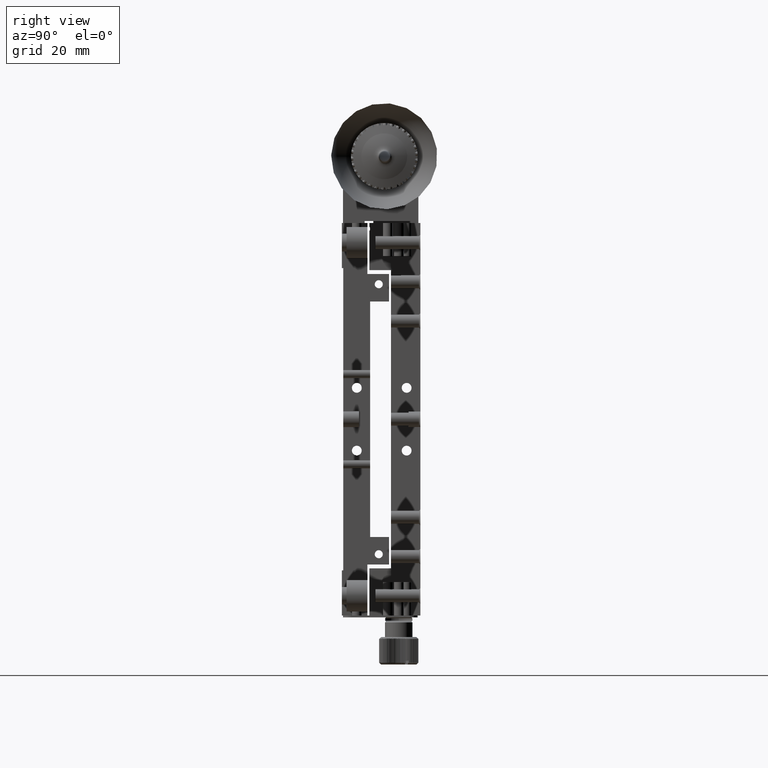
[diagram: clean part render]
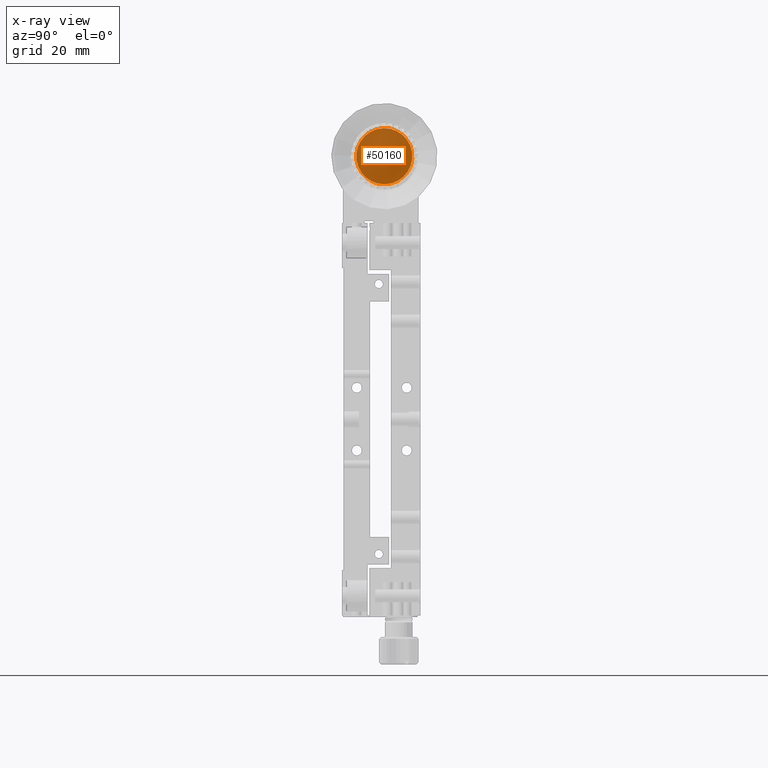
[diagram: x-ray — body ghosted, one internal face saturated and labeled with its STEP entity id]
A machine part, right view, then the same camera in x-ray: the body is ghosted and one INTERNAL B-rep face — a face not visible from any outside direction — is saturated and labeled: STEP entity #50160.
In plain terms, the highlighted planar face has unit normal (-1, -0, 0).
Its self-contained STEP definition (entity closure, byte-faithful):
#7820 = CARTESIAN_POINT ( 'NONE',  ( 41.30109935357899786, -10.59915581468196066, 64.26978987138492982 ) ) ;
#18936 = CARTESIAN_POINT ( 'NONE',  ( 41.30109935357899076, -66.11788156387731874, 65.24380896306122679 ) ) ;
#32617 = PLANE ( 'NONE',  #87713 ) ;
#40915 = FACE_OUTER_BOUND ( 'NONE', #47987, .T. ) ;
#47987 = EDGE_LOOP ( 'NONE', ( #75485 ) ) ;
#48776 = CIRCLE ( 'NONE', #50396, 7.150000000015665158 ) ;
#50160 = ADVANCED_FACE ( 'NONE', ( #40915 ), #32617, .T. ) ;
#50396 = AXIS2_PLACEMENT_3D ( 'NONE', #71043, #55820, #92059 ) ;
#55167 = EDGE_CURVE ( 'NONE', #74833, #74833, #48776, .T. ) ;
#55820 = DIRECTION ( 'NONE',  ( 1.000000000000000000, 0.000000000000000000, -1.224646799147353207E-16 ) ) ;
#62445 = DIRECTION ( 'NONE',  ( -1.000000000000000000, -1.848892746611746419E-32, 1.224646799147353207E-16 ) ) ;
#71043 = CARTESIAN_POINT ( 'NONE',  ( 41.30109935357899786, -3.990949976602917282, 67.00001250000005371 ) ) ;
#74833 = VERTEX_POINT ( 'NONE', #7820 ) ;
#75485 = ORIENTED_EDGE ( 'NONE', *, *, #55167, .F. ) ;
#84461 = DIRECTION ( 'NONE',  ( 4.676305458861343140E-17, 0.9242245927363025304, 0.3818493186865936084 ) ) ;
#87713 = AXIS2_PLACEMENT_3D ( 'NONE', #18936, #62445, #84461 ) ;
#92059 = DIRECTION ( 'NONE',  ( 0.000000000000000000, -0.9242245927363027524, -0.3818493186865931088 ) ) ;